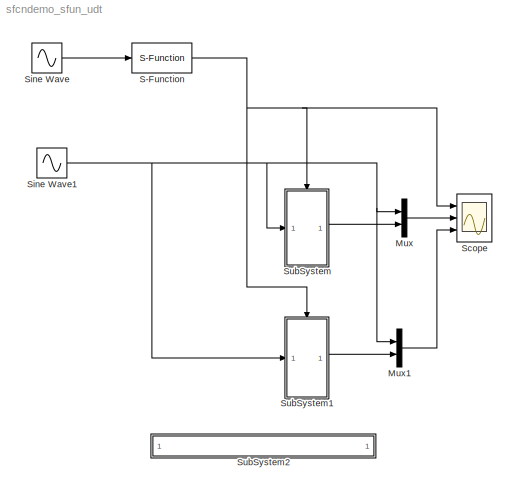
MODEL sfcndemo_sfun_udt
KIND model
BLOCK [Mux] Mux
  DisplayOption = bar
  Inputs = 2
  Ports = [2, 1]
BLOCK [Mux] Mux1
  DisplayOption = bar
  Inputs = 2
  Ports = [2, 1]
BLOCK [S-Function] S-Function
  FunctionName = sfun_udt
  Ports = [1, 1]
BLOCK [Scope] Scope
  DataFormat = StructureWithTime
  NumInputPorts = 3
  Ports = [3]
  SaveToWorkspace = on
  YMax = 5~5~5
  YMin = -5~-5~-5
BLOCK [Sin] Sine Wave
  Amplitude = 4.5
  Frequency = 1.5
  Ports = [0, 1]
  SampleTime = 0.05
BLOCK [Sin] Sine Wave1
  Amplitude = 4
  Ports = [0, 1]
  SampleTime = 0.05
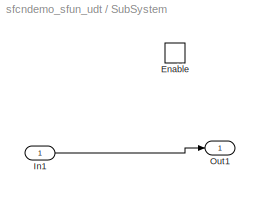
BLOCK [SubSystem] SubSystem
  MinAlgLoopOccurrences = off
  Ports = [1, 1, 1]
  PropExecContextAcrossSSBoundary = on
  RTWSystemCode = Auto
  ShowPortLabels = off
  TreatAsAtomicUnit = on
BLOCK [EnablePort] SubSystem/Enable
  Ports = []
BLOCK [Inport] SubSystem/In1
  IconDisplay = Port number
  LatchInput = off
  Port = 1
BLOCK [Outport] SubSystem/Out1
  IconDisplay = Port number
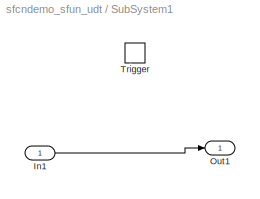
BLOCK [SubSystem] SubSystem1
  MinAlgLoopOccurrences = off
  Ports = [1, 1, 0, 1]
  PropExecContextAcrossSSBoundary = on
  RTWSystemCode = Auto
  ShowPortLabels = off
  TreatAsAtomicUnit = on
BLOCK [Inport] SubSystem1/In1
  IconDisplay = Port number
  LatchInput = off
  Port = 1
BLOCK [Outport] SubSystem1/Out1
  IconDisplay = Port number
BLOCK [TriggerPort] SubSystem1/Trigger
  Ports = []
BLOCK [SubSystem] SubSystem2
  MaskDisplay = disp('matlabroot<path>');
  MaskIconFrame = on
  MaskIconOpaque = on
  MaskIconRotate = none
  MaskIconUnits = autoscale
  MinAlgLoopOccurrences = off
  OpenFcn = edit(fullfile(matlabroot,'simulink','src','sfun_udt.c'))
  Ports = []
  PropExecContextAcrossSSBoundary = on
  RTWSystemCode = Auto
  TreatAsAtomicUnit = off
LINE Mux1:1 -> Scope:3
LINE Mux:1 -> Scope:2
NET S-Function:1 -> Scope:1, SubSystem1:trigger, SubSystem:enable
NET Sine Wave1:1 -> Mux1:1, Mux:1, SubSystem1:1, SubSystem:1
LINE Sine Wave:1 -> S-Function:1
LINE SubSystem/In1:1 -> SubSystem/Out1:1
LINE SubSystem1/In1:1 -> SubSystem1/Out1:1
LINE SubSystem1:1 -> Mux1:2
LINE SubSystem:1 -> Mux:2
note: NET lines group one-source signal fan-out (src -> all destinations, sorted); 1:1 wires keep LINE
note: 1 file-system path scrubbed to <path> (not preserved elsewhere — flat text is the only slx artifact)
